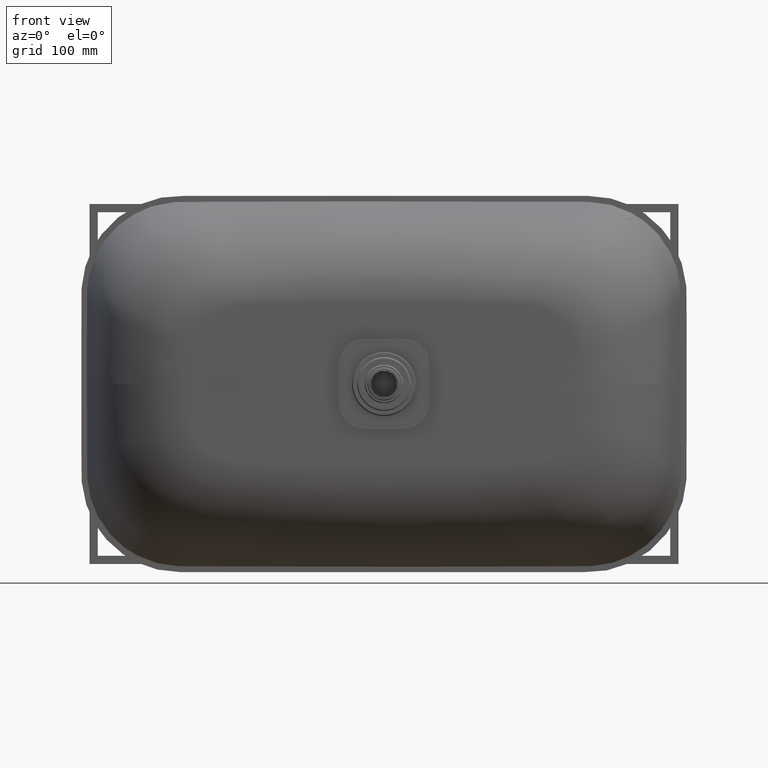
[diagram: clean part render]
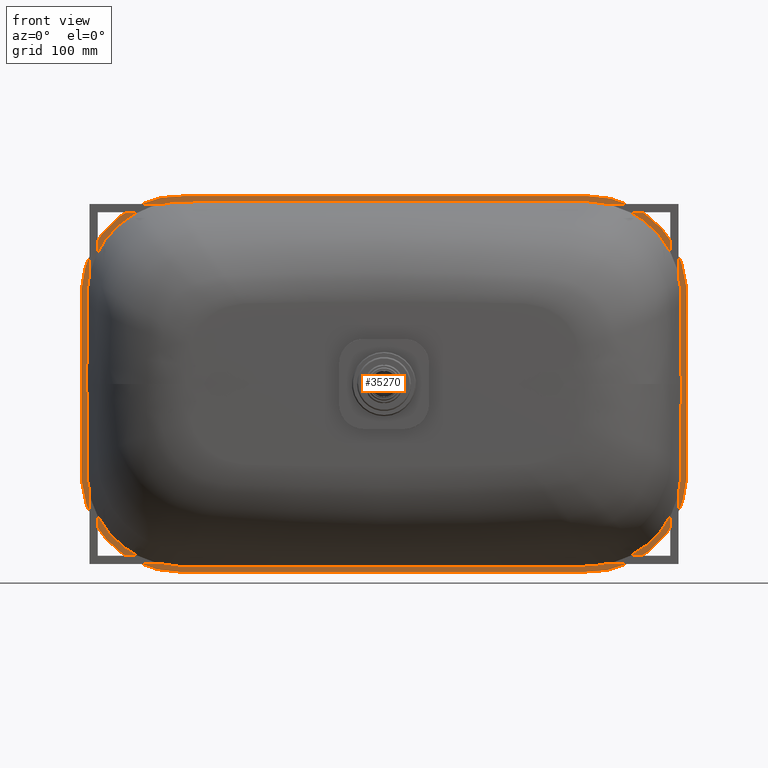
[diagram: same view with one face highlighted and labeled with its STEP entity id]
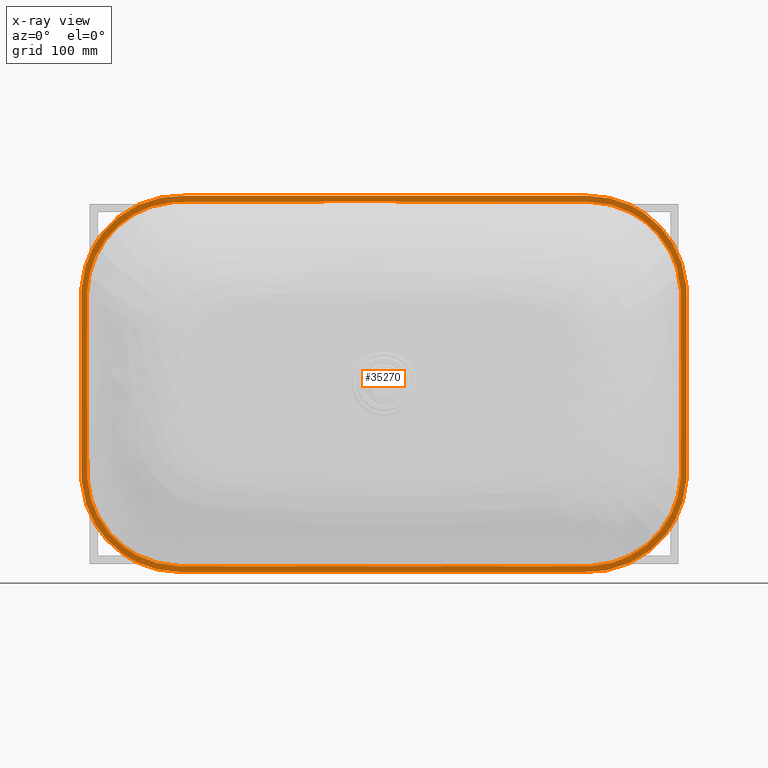
[diagram: x-ray of the same camera — body ghosted, the highlighted face saturated]
A machine part, front view. The second image highlights one B-rep face of the part: STEP entity #35270.
The next image is the same camera in x-ray: the body ghosted, the highlighted face saturated — about 0% of this face is hidden behind the body in this view.
In plain terms, the highlighted planar face has unit normal (0, 1, -0).
Its self-contained STEP definition (entity closure, byte-faithful):
#97 = CARTESIAN_POINT ( 'NONE',  ( -362.9754054177273000, -9.999999999999554100, -108.7276532639513400 ) ) ;
#102 = CARTESIAN_POINT ( 'NONE',  ( 361.2566691731123600, -10.00000000000011700, 129.0539013917965600 ) ) ;
#363 = CARTESIAN_POINT ( 'NONE',  ( -345.0564200818676600, -10.00000000000002000, -170.2196630842311200 ) ) ;
#630 = CARTESIAN_POINT ( 'NONE',  ( -289.5161888709535600, -10.00000000000032900, -215.3555697358578100 ) ) ;
#905 = CARTESIAN_POINT ( 'NONE',  ( -245.7966168999466300, -10.00000000000037500, -222.7691035715895400 ) ) ;
#1178 = CARTESIAN_POINT ( 'NONE',  ( 207.7400371386603700, -10.00000000000030200, -222.8816465399018800 ) ) ;
#1440 = CARTESIAN_POINT ( 'NONE',  ( 273.8700601871456100, -10.00000000000003200, -220.0697920216658500 ) ) ;
#1711 = CARTESIAN_POINT ( 'NONE',  ( 325.1449395641184900, -9.999999999999653600, -193.4649866433541900 ) ) ;
#1756 = ORIENTED_EDGE ( 'NONE', *, *, #23851, .F. ) ;
#1987 = CARTESIAN_POINT ( 'NONE',  ( 352.8462989769433900, -9.999999999999561200, -155.6719567063397800 ) ) ;
#2254 = CARTESIAN_POINT ( 'NONE',  ( 362.9910217820092800, -10.00000000000031800, -105.6723774499465100 ) ) ;
#2324 = CARTESIAN_POINT ( 'NONE',  ( -317.1785100912661100, -9.999999999999838400, 199.9931088752556400 ) ) ;
#2381 = FACE_OUTER_BOUND ( 'NONE', #60231, .T. ) ;
#2568 = CARTESIAN_POINT ( 'NONE',  ( -370.0000000000000000, -10.00000000000000000, -3.122502256758252800E-014 ) ) ;
#2597 = CARTESIAN_POINT ( 'NONE',  ( -363.0786479632249700, -10.00000000000141900, 88.98299129051045500 ) ) ;
#2846 = CARTESIAN_POINT ( 'NONE',  ( -370.0000000564165800, -9.999999999999975100, 78.40955897690190600 ) ) ;
#2876 = CARTESIAN_POINT ( 'NONE',  ( 43.63036583553199700, -9.999999999999897000, 223.2960193543779300 ) ) ;
#3075 = CARTESIAN_POINT ( 'NONE',  ( 369.9999973128920500, -10.00000000000003400, -103.4197589538119100 ) ) ;
#3122 = CARTESIAN_POINT ( 'NONE',  ( -369.9117756355504400, -9.999999999999964500, 115.0811365367341500 ) ) ;
#3354 = CARTESIAN_POINT ( 'NONE',  ( 365.5811764428864300, -10.00000000000004600, -142.7334832046046800 ) ) ;
#3400 = CARTESIAN_POINT ( 'NONE',  ( -289.4804807030344000, -9.999999999999928900, 223.4557360990969500 ) ) ;
#3430 = CARTESIAN_POINT ( 'NONE',  ( -45.76847509761827100, -9.999999999999897000, 223.2934257011737000 ) ) ;
#3636 = CARTESIAN_POINT ( 'NONE',  ( 257.3966411606836000, -10.00000000000007300, -229.7905751632785000 ) ) ;
#3683 = CARTESIAN_POINT ( 'NONE',  ( -245.3670214626337700, -9.999999999999927200, 230.0000054136309600 ) ) ;
#3717 = CARTESIAN_POINT ( 'NONE',  ( -179.8663722601961000, -9.999999999999591400, 222.9634524030508100 ) ) ;
#3929 = CARTESIAN_POINT ( 'NONE',  ( 208.1909280709354800, -10.00000000000007300, -229.9999998948313200 ) ) ;
#3972 = CARTESIAN_POINT ( 'NONE',  ( -1.838806884535415500E-013, -9.999999999999927200, 229.9999999999805900 ) ) ;
#4003 = CARTESIAN_POINT ( 'NONE',  ( 288.8545650664437400, -10.00000000000033400, 215.6062121086660600 ) ) ;
#4211 = CARTESIAN_POINT ( 'NONE',  ( -156.8191275139739400, -10.00000000000007300, -230.0000000053955500 ) ) ;
#4252 = CARTESIAN_POINT ( 'NONE',  ( 245.3670214626335200, -9.999999999999927200, 230.0000054136308200 ) ) ;
#4282 = CARTESIAN_POINT ( 'NONE',  ( 362.1220117706092800, -9.999999999999978700, 123.5380915270102200 ) ) ;
#4489 = CARTESIAN_POINT ( 'NONE',  ( -250.7332074480156300, -10.00000000000007300, -229.9991818206130700 ) ) ;
#4533 = CARTESIAN_POINT ( 'NONE',  ( 289.4804807030340600, -9.999999999999928900, 223.4557360990970400 ) ) ;
#4771 = CARTESIAN_POINT ( 'NONE',  ( -353.0913786025862500, -10.00000000000005300, -171.9959201989187800 ) ) ;
#4815 = CARTESIAN_POINT ( 'NONE',  ( 369.9117756355506100, -9.999999999999964500, 115.0811365367344900 ) ) ;
#4844 = CARTESIAN_POINT ( 'NONE',  ( -319.4062170478295600, -9.999999999999838400, 198.2861344357080500 ) ) ;
#5051 = CARTESIAN_POINT ( 'NONE',  ( -370.0000523813992000, -10.00000000000003600, -108.4842689358032900 ) ) ;
#5097 = CARTESIAN_POINT ( 'NONE',  ( 370.0000000564166400, -9.999999999999975100, 78.40955897690213300 ) ) ;
#5125 = CARTESIAN_POINT ( 'NONE',  ( -342.3663254214499100, -9.999999999999866800, 174.0511910052050300 ) ) ;
#5325 = CARTESIAN_POINT ( 'NONE',  ( -370.0000000000000600, -10.00000000000000200, -5.407556139488238300 ) ) ;
#5582 = DIRECTION ( 'NONE',  ( 0.0000000000000000000, 1.000000000000000000, -3.155370701566231900E-016 ) ) ;
#5698 = CARTESIAN_POINT ( 'NONE',  ( -363.2947380375272200, -10.00000000000026600, -4.082011542286651700E-014 ) ) ;
#6536 = CARTESIAN_POINT ( 'NONE',  ( -362.8230154788090000, -9.999999999999660700, -115.0242055654573900 ) ) ;
#6541 = CARTESIAN_POINT ( 'NONE',  ( 222.4274816866598900, -9.999999999999564800, 222.8382132457971600 ) ) ;
#6813 = CARTESIAN_POINT ( 'NONE',  ( -334.9388872664374000, -10.00000000000016700, -183.7123861236576700 ) ) ;
#7052 = EDGE_CURVE ( 'NONE', #26849, #66233, #27076, .T. ) ;
#7085 = CARTESIAN_POINT ( 'NONE',  ( -278.8606347476583700, -10.00000000000021800, -218.7223934635122800 ) ) ;
#7351 = CARTESIAN_POINT ( 'NONE',  ( -237.5002668517534800, -10.00000000000021700, -222.7936334566793200 ) ) ;
#7623 = CARTESIAN_POINT ( 'NONE',  ( 235.3946119532289500, -10.00000000000017600, -222.7998620711508700 ) ) ;
#7898 = CARTESIAN_POINT ( 'NONE',  ( 284.6500970675725700, -10.00000000000084700, -216.9782276895242900 ) ) ;
#8165 = CARTESIAN_POINT ( 'NONE',  ( 328.3015074780312800, -9.999999999999602100, -190.5205774573504100 ) ) ;
#8430 = CARTESIAN_POINT ( 'NONE',  ( 357.9914560746990400, -9.999999999999932500, -142.4074307492360000 ) ) ;
#8700 = CARTESIAN_POINT ( 'NONE',  ( 363.1197224032430300, -9.999999999999589700, -79.96915049456517000 ) ) ;
#8776 = CARTESIAN_POINT ( 'NONE',  ( 211.2526908818204300, -9.999999999999651800, 222.8712840848867000 ) ) ;
#9020 = CARTESIAN_POINT ( 'NONE',  ( -370.0000000000000000, -9.999999999999998200, 5.407556139488176200 ) ) ;
#9050 = CARTESIAN_POINT ( 'NONE',  ( 336.4184629000758900, -10.00000000000030200, 181.7783395176551600 ) ) ;
#9293 = CARTESIAN_POINT ( 'NONE',  ( -370.0000001376324700, -9.999999999999971600, 93.28033090629507700 ) ) ;
#9323 = CARTESIAN_POINT ( 'NONE',  ( -344.6948635532979200, -9.999999999999863200, 170.5466255652006600 ) ) ;
#9528 = CARTESIAN_POINT ( 'NONE',  ( 369.9999697595848700, -10.00000000000003400, -107.1399925168115600 ) ) ;
#9574 = CARTESIAN_POINT ( 'NONE',  ( -369.2231796589291500, -9.999999999999960900, 123.9083132636468500 ) ) ;
#9605 = CARTESIAN_POINT ( 'NONE',  ( -359.0227985077314700, -9.999999999999859700, 138.8617663828866900 ) ) ;
#9812 = CARTESIAN_POINT ( 'NONE',  ( 358.9368303385662700, -10.00000000000005000, -160.6374205879343400 ) ) ;
#9860 = CARTESIAN_POINT ( 'NONE',  ( -272.5347273984072600, -9.999999999999928900, 227.9402078853941300 ) ) ;
#9890 = CARTESIAN_POINT ( 'NONE',  ( -361.3394157542427900, -9.999999999999440400, 127.8455648082973100 ) ) ;
#10103 = CARTESIAN_POINT ( 'NONE',  ( 252.1423367717200400, -10.00000000000007300, -229.9854392652010800 ) ) ;
#10150 = CARTESIAN_POINT ( 'NONE',  ( -235.2282897767611300, -9.999999999999927200, 230.0000025992095500 ) ) ;
#10180 = CARTESIAN_POINT ( 'NONE',  ( -360.5515044105120000, -9.999999999999857900, 131.9859162139530000 ) ) ;
#10383 = CARTESIAN_POINT ( 'NONE',  ( 178.4493543980402700, -10.00000000000007300, -229.9999999906549700 ) ) ;
#10429 = CARTESIAN_POINT ( 'NONE',  ( 64.89067382028734700, -9.999999999999927200, 229.9999999998671300 ) ) ;
#10460 = CARTESIAN_POINT ( 'NONE',  ( 362.9965070291818300, -10.00000000000073000, 104.6679044025500200 ) ) ;
#10667 = CARTESIAN_POINT ( 'NONE',  ( -194.6720158728513800, -10.00000000000007300, -230.0000000356705800 ) ) ;
#10711 = CARTESIAN_POINT ( 'NONE',  ( 248.4051379303400300, -9.999999999999927200, 230.0000288654553300 ) ) ;
#10743 = CARTESIAN_POINT ( 'NONE',  ( 362.9750443663849600, -9.999999999999383600, 108.8827675663090100 ) ) ;
#10955 = CARTESIAN_POINT ( 'NONE',  ( -254.1704036494605200, -10.00000000000007300, -229.9357047427392900 ) ) ;
#10998 = CARTESIAN_POINT ( 'NONE',  ( 315.4333475073833600, -9.999999999999934300, 211.1954338164224200 ) ) ;
#11029 = CARTESIAN_POINT ( 'NONE',  ( -363.2730728410124400, -9.999999999999095800, 27.80738851365030600 ) ) ;
#11236 = CARTESIAN_POINT ( 'NONE',  ( -362.6162986912609100, -10.00000000000004800, -151.8170165020855800 ) ) ;
#11276 = CARTESIAN_POINT ( 'NONE',  ( 369.9985107857468700, -9.999999999999966200, 110.8386633332187300 ) ) ;
#11505 = CARTESIAN_POINT ( 'NONE',  ( -370.0000102567383900, -10.00000000000003400, -105.4463998884248800 ) ) ;
#11551 = CARTESIAN_POINT ( 'NONE',  ( 370.0000000051377900, -9.999999999999984000, 48.66800487696834700 ) ) ;
#11579 = CARTESIAN_POINT ( 'NONE',  ( -363.1285315623750300, -9.999999999999660700, 77.86048813734041100 ) ) ;
#12993 = CARTESIAN_POINT ( 'NONE',  ( -361.2923267975181100, -10.00000000000092400, -128.8492855374269100 ) ) ;
#12999 = CARTESIAN_POINT ( 'NONE',  ( 334.5778834918176600, -10.00000000000030000, 183.9270809719566800 ) ) ;
#13263 = CARTESIAN_POINT ( 'NONE',  ( -323.0528332967364800, -10.00000000000006000, -195.4650113628155500 ) ) ;
#13530 = CARTESIAN_POINT ( 'NONE',  ( -273.3824105339747900, -10.00000000000037100, -220.0481468593515900 ) ) ;
#13802 = CARTESIAN_POINT ( 'NONE',  ( -212.6112179448956300, -9.999999999999998200, -222.8672706559216900 ) ) ;
#14074 = CARTESIAN_POINT ( 'NONE',  ( 247.1478068609112600, -10.00000000000005900, -222.7651103096347900 ) ) ;
#14183 = B_SPLINE_CURVE_WITH_KNOTS ( 'NONE', 3,
 ( #5698, #51136, #57576, #19158, #63992, #25585, #70411, #32072, #76847, #38526, #97, #44979, #6536, #51413, #12993, #57845, #19427, #64263, #25858, #70671, #32343, #77123, #38794, #363, #45251, #6813, #51682, #13263, #58122, #19694, #64529, #26131, #70952, #32613, #77396, #39070, #630, #45518, #7085, #51957, #13530, #58398, #19963, #64796, #26402, #71223, #32889, #77660, #39344, #905, #45791, #7351, #52232, #13802, #58663, #20240, #65076, #26684, #71498, #33163, #77937, #39616, #1178, #46065, #7623, #52499, #14074, #58934, #20505, #65343, #26962, #71759, #33425, #78213, #39888, #1440, #46331, #7898, #52759, #14341, #59200, #20777, #65607, #27232, #72035, #33688, #78475, #40163, #1711, #46593, #8165, #53029, #14611, #59460, #21050, #65870, #27499, #72309, #33966, #78736, #40433, #1987, #46865, #8430, #53298, #14888, #59725, #21310, #66141, #27768, #72571, #34234, #79007, #40700, #2254, #47137, #8700, #53562, #15159, #60000 ),
 .UNSPECIFIED., .F., .F.,
 ( 4, 2, 2, 2, 2, 2, 2, 2, 2, 2, 2, 2, 2, 2, 2, 2, 2, 2, 2, 2, 2, 2, 2, 2, 2, 1, 2, 2, 2, 2, 2, 2, 2, 2, 2, 2, 2, 2, 2, 2, 2, 2, 2, 2, 2, 2, 2, 2, 2, 2, 2, 2, 2, 2, 2, 2, 2, 2, 1, 2, 4 ),
 ( 1.572839673129814300E-019, 0.06734121974812136400, 0.1010118296221820400, 0.1052206558564396400, 0.1073250689735684400, 0.1094294820906972400, 0.1178471345592124500, 0.1346824394962428100, 0.1431000919647580400, 0.1473089181990156200, 0.1515177444332731800, 0.1683530493703034600, 0.1851883543073337400, 0.2020236592443640200, 0.2188589641813943300, 0.2230677904156519200, 0.2272766166499095300, 0.2356942691184249500, 0.2525295740554556700, 0.2609472265239710700, 0.2651560527582287900, 0.2693648789924864600, 0.2862001839295177900, 0.2883045970466466800, 0.2904090101637756300, 0.2946178363980335700, 0.3030354888665494100, 0.3367060987406130200, 0.4040473184887401500, 0.5387297579849943400, 0.6734121974812484800, 0.7407534172293754900, 0.7744240271034390500, 0.7912593320404708300, 0.7933637451576000000, 0.7954681582747289400, 0.7996769845089868300, 0.8080946369775030600, 0.8249299419145353900, 0.8333475943830515000, 0.8375564206173096200, 0.8396608337344386700, 0.8417652468515679500, 0.8586005517886011700, 0.8754358567256342900, 0.8796446829598925100, 0.8838535091941508400, 0.8922711616626676200, 0.9091064665997009600, 0.9133152928339592900, 0.9175241190682175100, 0.9259417715367342900, 0.9427770764737677400, 0.9511947289422845200, 0.9554035551765429600, 0.9596123814108011900, 0.9680300338793179600, 0.9722388601135763000, 0.9764476863478345200, 1.010118296221901300, 1.077459515970034600 ),
 .UNSPECIFIED. ) ;
#14341 = CARTESIAN_POINT ( 'NONE',  ( 290.0032839300347400, -9.999999999999980500, -215.0326404413172000 ) ) ;
#14549 = CARTESIAN_POINT ( 'NONE',  ( -363.2947380375272200, -10.00000000000026600, -4.082011542286651700E-014 ) ) ;
#14611 = CARTESIAN_POINT ( 'NONE',  ( 332.3273997485679300, -9.999999999999923600, -186.4546788008552500 ) ) ;
#14888 = CARTESIAN_POINT ( 'NONE',  ( 360.7182042566006400, -9.999999999999676700, -131.3142169415097800 ) ) ;
#15159 = CARTESIAN_POINT ( 'NONE',  ( 363.2947380375272200, -9.999999999999129600, -22.84839107160031100 ) ) ;
#15498 = CARTESIAN_POINT ( 'NONE',  ( 330.7760364761813300, -9.999999999999671400, 188.0839808757534700 ) ) ;
#15699 = CARTESIAN_POINT ( 'NONE',  ( 370.0000000003951200, -10.00000000000000500, -16.22266841846388300 ) ) ;
#15746 = CARTESIAN_POINT ( 'NONE',  ( -370.0000015512933900, -9.999999999999969800, 100.7155903604958800 ) ) ;
#15983 = CARTESIAN_POINT ( 'NONE',  ( 369.9998421130367200, -10.00000000000003600, -109.3485733155321100 ) ) ;
#16028 = CARTESIAN_POINT ( 'NONE',  ( -367.4470581483515700, -9.999999999999957400, 134.9774096808805000 ) ) ;
#16263 = CARTESIAN_POINT ( 'NONE',  ( 344.0916251262462400, -10.00000000000005900, -185.3011088497730400 ) ) ;
#16310 = CARTESIAN_POINT ( 'NONE',  ( -261.4155354305588000, -9.999999999999927200, 229.4878407854311600 ) ) ;
#16342 = CARTESIAN_POINT ( 'NONE',  ( 294.0438591447252200, -9.999999999999785100, 213.5216902441740400 ) ) ;
#16547 = CARTESIAN_POINT ( 'NONE',  ( 249.9071089342750200, -10.00000000000007300, -230.0001508669375900 ) ) ;
#16591 = CARTESIAN_POINT ( 'NONE',  ( -219.0059958477467900, -9.999999999999927200, 230.0000001821697100 ) ) ;
#16838 = CARTESIAN_POINT ( 'NONE',  ( 129.7813478840299100, -10.00000000000007300, -229.9999999981669700 ) ) ;
#16886 = CARTESIAN_POINT ( 'NONE',  ( 129.7813478840280400, -9.999999999999927200, 229.9999999981663400 ) ) ;
#16916 = CARTESIAN_POINT ( 'NONE',  ( 268.4731641648384700, -10.00000000000032000, 221.0222664262380500 ) ) ;
#17121 = CARTESIAN_POINT ( 'NONE',  ( -219.0059958477463300, -10.00000000000007300, -230.0000001821698000 ) ) ;
#17166 = CARTESIAN_POINT ( 'NONE',  ( 249.9071089342732000, -9.999999999999927200, 230.0001508669372800 ) ) ;
#17399 = CARTESIAN_POINT ( 'NONE',  ( -261.4155354305581200, -10.00000000000007300, -229.4878407854313900 ) ) ;
#17401 = CARTESIAN_POINT ( 'NONE',  ( -363.2941354495599200, -10.00000000000088800, 4.866298984576735300 ) ) ;
#17444 = CARTESIAN_POINT ( 'NONE',  ( 344.0916251262449400, -9.999999999999941400, 185.3011088497744400 ) ) ;
#17471 = CARTESIAN_POINT ( 'NONE',  ( -362.8509485677166700, -10.00000000000063800, 114.0037391314922100 ) ) ;
#17673 = CARTESIAN_POINT ( 'NONE',  ( -367.4470581483514600, -10.00000000000004400, -134.9774096808805600 ) ) ;
#17717 = CARTESIAN_POINT ( 'NONE',  ( 369.9998421130369500, -9.999999999999966200, 109.3485733155334900 ) ) ;
#17746 = CARTESIAN_POINT ( 'NONE',  ( -242.7246687917556500, -10.00000000000071800, 222.7781832025517900 ) ) ;
#17947 = CARTESIAN_POINT ( 'NONE',  ( -370.0000015512933900, -10.00000000000003200, -100.7155903604959900 ) ) ;
#17993 = CARTESIAN_POINT ( 'NONE',  ( 370.0000000003951800, -9.999999999999994700, 16.22266841846510800 ) ) ;
#18023 = CARTESIAN_POINT ( 'NONE',  ( 356.8879758951388800, -10.00000000000007500, 145.3735181719190700 ) ) ;
#19158 = CARTESIAN_POINT ( 'NONE',  ( -363.1256134293522000, -10.00000000000105500, -78.56459253949667200 ) ) ;
#19427 = CARTESIAN_POINT ( 'NONE',  ( -358.6773285387536700, -9.999999999999420900, -139.7142526681435600 ) ) ;
#19434 = CARTESIAN_POINT ( 'NONE',  ( -249.7087480986767200, -9.999999999999708700, 222.7560370534987700 ) ) ;
#19694 = CARTESIAN_POINT ( 'NONE',  ( -312.9767190215386000, -9.999999999999717600, -202.9873382634710300 ) ) ;
#19963 = CARTESIAN_POINT ( 'NONE',  ( -269.2556151640220600, -10.00000000000009600, -220.8816580700944600 ) ) ;
#20240 = CARTESIAN_POINT ( 'NONE',  ( -157.3021295190392600, -10.00000000000068200, -223.0289447404392400 ) ) ;
#20505 = CARTESIAN_POINT ( 'NONE',  ( 249.2219004241086700, -10.00000000000029800, -222.7589813820564500 ) ) ;
#20777 = CARTESIAN_POINT ( 'NONE',  ( 292.6712773580756000, -10.00000000000032000, -213.9550934646284200 ) ) ;
#21050 = CARTESIAN_POINT ( 'NONE',  ( 339.7457905242104100, -9.999999999999930700, -177.8199977886262400 ) ) ;
#21310 = CARTESIAN_POINT ( 'NONE',  ( 361.6962502370597000, -10.00000000000030000, -125.6354596625938200 ) ) ;
#21381 = CARTESIAN_POINT ( 'NONE',  ( -363.0061740353628500, -10.00000000000141400, 102.8856921590276100 ) ) ;
#21917 = CARTESIAN_POINT ( 'NONE',  ( 155.3786608405834800, -10.00000000000007600, 223.0344066852018700 ) ) ;
#22123 = CARTESIAN_POINT ( 'NONE',  ( 370.0000000051375700, -10.00000000000001600, -48.66800487696705300 ) ) ;
#22168 = CARTESIAN_POINT ( 'NONE',  ( -370.0000102567384500, -9.999999999999968000, 105.4463998884247800 ) ) ;
#22197 = CARTESIAN_POINT ( 'NONE',  ( -362.9911745608852700, -9.999999999999289500, 105.6662109833377900 ) ) ;
#22406 = CARTESIAN_POINT ( 'NONE',  ( 369.9985107857468700, -10.00000000000003600, -110.8386633332168900 ) ) ;
#22452 = CARTESIAN_POINT ( 'NONE',  ( -362.6162986912610800, -9.999999999999952000, 151.8170165020855200 ) ) ;
#22688 = CARTESIAN_POINT ( 'NONE',  ( 315.4333475073850700, -10.00000000000006600, -211.1954338164214800 ) ) ;
#22735 = CARTESIAN_POINT ( 'NONE',  ( -254.1704036494610900, -9.999999999999927200, 229.9357047427391500 ) ) ;
#22766 = CARTESIAN_POINT ( 'NONE',  ( 362.8136994551970200, -9.999999999999978700, 115.1890084391962100 ) ) ;
#22978 = CARTESIAN_POINT ( 'NONE',  ( 248.4051379303418800, -10.00000000000007300, -230.0000288654555000 ) ) ;
#23024 = CARTESIAN_POINT ( 'NONE',  ( -194.6720158728519400, -9.999999999999927200, 230.0000000356703000 ) ) ;
#23057 = CARTESIAN_POINT ( 'NONE',  ( -353.4371117947550300, -9.999999999999911200, 154.5934253794681600 ) ) ;
#23266 = CARTESIAN_POINT ( 'NONE',  ( 64.89067382028906600, -10.00000000000007300, -229.9999999998679200 ) ) ;
#23309 = CARTESIAN_POINT ( 'NONE',  ( 178.4493543980382200, -9.999999999999927200, 229.9999999906543500 ) ) ;
#23339 = CARTESIAN_POINT ( 'NONE',  ( -213.3907980822630200, -9.999999999999593200, 222.8649699142064300 ) ) ;
#23541 = CARTESIAN_POINT ( 'NONE',  ( -235.2282897767607000, -10.00000000000007300, -230.0000025992095500 ) ) ;
#23585 = CARTESIAN_POINT ( 'NONE',  ( 252.1423367717181100, -9.999999999999927200, 229.9854392652008000 ) ) ;
#23616 = CARTESIAN_POINT ( 'NONE',  ( 88.32974942237093800, -10.00000000000007500, 223.2092362523598300 ) ) ;
#23832 = CARTESIAN_POINT ( 'NONE',  ( -272.5347273984065700, -10.00000000000007100, -227.9402078853945000 ) ) ;
#23834 = CARTESIAN_POINT ( 'NONE',  ( -363.2947245556224500, -9.999999999999452900, 0.6951857057102269800 ) ) ;
#23851 = EDGE_CURVE ( 'NONE', #66233, #26849, #14183, .T. ) ;
#23878 = CARTESIAN_POINT ( 'NONE',  ( 358.9368303385653000, -9.999999999999950300, 160.6374205879357900 ) ) ;
#24013 = EDGE_CURVE ( 'NONE', #68062, #30836, #81551, .T. ) ;
#24114 = CARTESIAN_POINT ( 'NONE',  ( -369.2231796589290400, -10.00000000000004100, -123.9083132636469600 ) ) ;
#24157 = CARTESIAN_POINT ( 'NONE',  ( 369.9999697595850400, -9.999999999999968000, 107.1399925168131400 ) ) ;
#24185 = CARTESIAN_POINT ( 'NONE',  ( -90.46784528575686600, -10.00000000000023300, 223.2044962727691200 ) ) ;
#24384 = CARTESIAN_POINT ( 'NONE',  ( -370.0000001376325800, -10.00000000000003000, -93.28033090629502100 ) ) ;
#24429 = CARTESIAN_POINT ( 'NONE',  ( 369.9999999999998900, -10.00000000000000000, 5.785302792382651700E-013 ) ) ;
#24950 = CARTESIAN_POINT ( 'NONE',  ( -370.0000000000000000, -10.00000000000000000, -3.122502256758252800E-014 ) ) ;
#25585 = CARTESIAN_POINT ( 'NONE',  ( -363.0085579391795800, -10.00000000000002300, -102.4143719376155700 ) ) ;
#25858 = CARTESIAN_POINT ( 'NONE',  ( -356.9831385388691800, -9.999999999999609200, -145.0923651046940700 ) ) ;
#26131 = CARTESIAN_POINT ( 'NONE',  ( -309.4393380442347700, -9.999999999999815300, -205.2963334516327900 ) ) ;
#26402 = CARTESIAN_POINT ( 'NONE',  ( -256.8545456470493500, -10.00000000000034500, -222.5876900329998600 ) ) ;
#26684 = CARTESIAN_POINT ( 'NONE',  ( -46.68336513673275300, -9.999999999999825900, -223.2917342923191800 ) ) ;
#26849 = VERTEX_POINT ( 'NONE', #50052 ) ;
#26962 = CARTESIAN_POINT ( 'NONE',  ( 251.9840686603744200, -9.999999999999884500, -222.7150983299428600 ) ) ;
#27076 = B_SPLINE_CURVE_WITH_KNOTS ( 'NONE', 3,
 ( #78809, #34040, #75436, #68729, #56439, #74045, #10460, #47209, #73188, #10743, #30925, #22766, #4282, #102, #61472, #55884, #36284, #18023, #29522, #40507, #60617, #60903, #51419, #81873, #80185, #9050, #12999, #28665, #15498, #48881, #65947, #64270, #66479, #62031, #79620, #75712, #54190, #55039, #16342, #4003, #79348, #79081, #74884, #74602, #75169, #16916, #37394, #49721, #72916, #72378, #42178, #28118, #81593, #81037, #6541, #8776, #62863, #21917, #23616, #2876, #3430, #24185, #34305, #3717, #23339, #28384, #28950, #17746, #29236, #36558, #19434, #55599, #54464, #55323, #30642, #53632, #54743, #74334, #53368, #42731, #73467, #72641, #40775, #59794, #27572, #35422, #2324, #4844, #67037, #66213, #69008, #29801, #35138, #62587, #5125, #9323, #61190, #67887, #66753, #67602, #23057, #44984, #9605, #10180, #34851, #9890, #61749, #41887, #73751, #60074, #17471, #69275, #57854, #67319, #62312, #22197, #21381, #2597, #11579, #35997, #68178, #11029, #30371, #80468, #17401, #30303, #68658, #23834, #75097, #55810, #62243 ),
 .UNSPECIFIED., .F., .F.,
 ( 4, 2, 2, 1, 2, 2, 2, 2, 2, 2, 2, 2, 2, 2, 2, 2, 2, 2, 2, 2, 2, 2, 2, 2, 2, 2, 1, 1, 2, 2, 2, 2, 2, 2, 2, 1, 2, 2, 2, 2, 2, 2, 2, 2, 2, 2, 2, 2, 2, 2, 2, 2, 2, 2, 2, 2, 2, 2, 2, 2, 2, 2, 2, 1, 1, 1, 1, 1, 2, 4 ),
 ( 1.077459515970034600, 1.143712345490236700, 1.176838760250337800, 1.180979562095350500, 1.183049963017856600, 1.185120363940362900, 1.193401967630388000, 1.209965175010438300, 1.218246778700463400, 1.222387580545475800, 1.226528382390488400, 1.243091589770538800, 1.259654797150588900, 1.263795598995601600, 1.267936400840614000, 1.276218004530638800, 1.292781211910688700, 1.296922013755701200, 1.301062815600713800, 1.309344419290738900, 1.325907626670789200, 1.334189230360814500, 1.338330032205826900, 1.342470834050839600, 1.359034041430889000, 1.361104442353395300, 1.363174843275901400, 1.367315645120914100, 1.375597248810938900, 1.408723663571038300, 1.474976493091237200, 1.607482152131635100, 1.739987811172033300, 1.806240640692232000, 1.839367055452331800, 1.847648659142356400, 1.851789460987368900, 1.853859861909875000, 1.855930262832381500, 1.872493470212431400, 1.880775073902456900, 1.884915875747469500, 1.889056677592482000, 1.905619884972532800, 1.922183092352583800, 1.926323894197596400, 1.930464696042609300, 1.938746299732634800, 1.955309507112685400, 1.963591110802711100, 1.967731912647723700, 1.971872714492736400, 1.988435921872787600, 2.004999129252838900, 2.009139931097851500, 2.013280732942864600, 2.021562336632889900, 2.025703138477902500, 2.027773539400409100, 2.029843940322915600, 2.038125544012940900, 2.071251958773042500, 2.104378373533144500, 2.120941580913195100, 2.129223184603220800, 2.133363986448233400, 2.135434387370740000, 2.136469587831992800, 2.136987188062619200, 2.137504788293246100 ),
 .UNSPECIFIED. ) ;
#27124 = EDGE_LOOP ( 'NONE', ( #1756, #73538 ) ) ;
#27232 = CARTESIAN_POINT ( 'NONE',  ( 294.6581349245893200, -9.999999999999767300, -213.1066729424156300 ) ) ;
#27499 = CARTESIAN_POINT ( 'NONE',  ( 346.8344609475260500, -9.999999999999778000, -167.1079698293415000 ) ) ;
#27572 = CARTESIAN_POINT ( 'NONE',  ( -310.3617109579665800, -10.00000000000037800, 204.8628184424646600 ) ) ;
#27702 = ORIENTED_EDGE ( 'NONE', *, *, #24013, .F. ) ;
#27768 = CARTESIAN_POINT ( 'NONE',  ( 362.2601360234473300, -10.00000000000010500, -121.3644455123006200 ) ) ;
#28118 = CARTESIAN_POINT ( 'NONE',  ( 245.4754891570022400, -10.00000000000030900, 222.7700525390903000 ) ) ;
#28384 = CARTESIAN_POINT ( 'NONE',  ( -224.5656059515280000, -9.999999999999904100, 222.8318887402703600 ) ) ;
#28590 = CARTESIAN_POINT ( 'NONE',  ( 370.0000000564162400, -10.00000000000002500, -78.40955897690069800 ) ) ;
#28635 = CARTESIAN_POINT ( 'NONE',  ( -370.0000523813991400, -9.999999999999966200, 108.4842689358032700 ) ) ;
#28665 = CARTESIAN_POINT ( 'NONE',  ( 333.6402837049307100, -9.999999999999671400, 184.9812881415656700 ) ) ;
#28871 = CARTESIAN_POINT ( 'NONE',  ( 369.9117756355505500, -10.00000000000003700, -115.0811365367326000 ) ) ;
#28918 = CARTESIAN_POINT ( 'NONE',  ( -353.0913786025861300, -9.999999999999946700, 171.9959201989187200 ) ) ;
#28950 = CARTESIAN_POINT ( 'NONE',  ( -238.5341159004421200, -9.999999999999902300, 222.7905758809478100 ) ) ;
#29159 = CARTESIAN_POINT ( 'NONE',  ( 289.4804807030358800, -10.00000000000007100, -223.4557360990965000 ) ) ;
#29206 = CARTESIAN_POINT ( 'NONE',  ( -250.7332074480161500, -9.999999999999927200, 229.9991818206130200 ) ) ;
#29236 = CARTESIAN_POINT ( 'NONE',  ( -246.9152225662930400, -9.999999999999712200, 222.7657974363827400 ) ) ;
#29445 = CARTESIAN_POINT ( 'NONE',  ( 245.3670214626352800, -10.00000000000007300, -230.0000054136311000 ) ) ;
#29491 = CARTESIAN_POINT ( 'NONE',  ( -156.8191275139746200, -9.999999999999927200, 230.0000000053952400 ) ) ;
#29522 = CARTESIAN_POINT ( 'NONE',  ( 355.9471692248648100, -10.00000000000007500, 148.0313920214255500 ) ) ;
#29727 = CARTESIAN_POINT ( 'NONE',  ( 1.292368989602721300E-012, -10.00000000000007300, -229.9999999999812700 ) ) ;
#29769 = CARTESIAN_POINT ( 'NONE',  ( 208.1909280709335200, -9.999999999999927200, 229.9999998948308600 ) ) ;
#29801 = CARTESIAN_POINT ( 'NONE',  ( -331.8999690275114200, -10.00000000000036100, 187.0589047403916500 ) ) ;
#30015 = CARTESIAN_POINT ( 'NONE',  ( -245.3670214626334000, -10.00000000000007300, -230.0000054136309600 ) ) ;
#30058 = CARTESIAN_POINT ( 'NONE',  ( 257.3966411606815000, -9.999999999999927200, 229.7905751632782800 ) ) ;
#30301 = CARTESIAN_POINT ( 'NONE',  ( -289.4804807030339500, -10.00000000000007100, -223.4557360990971500 ) ) ;
#30303 = CARTESIAN_POINT ( 'NONE',  ( -363.2945871782254700, -9.999999999999181100, 2.433149775089966700 ) ) ;
#30344 = CARTESIAN_POINT ( 'NONE',  ( 365.5811764428856300, -9.999999999999955600, 142.7334832046064200 ) ) ;
#30371 = CARTESIAN_POINT ( 'NONE',  ( -363.2851781905986900, -9.999999999999927200, 19.46518249791724000 ) ) ;
#30558 = PLANE ( 'NONE',  #54814 ) ;
#30567 = CARTESIAN_POINT ( 'NONE',  ( -369.9117756355506100, -10.00000000000003700, -115.0811365367342300 ) ) ;
#30613 = CARTESIAN_POINT ( 'NONE',  ( 369.9999973128919900, -9.999999999999968000, 103.4197589538134400 ) ) ;
#30642 = CARTESIAN_POINT ( 'NONE',  ( -263.5815386946428600, -9.999999999999984000, 221.9016880969199700 ) ) ;
#30836 = VERTEX_POINT ( 'NONE', #24950 ) ;
#30851 = CARTESIAN_POINT ( 'NONE',  ( -370.0000000564165800, -10.00000000000002500, -78.40955897690180600 ) ) ;
#30925 = CARTESIAN_POINT ( 'NONE',  ( 362.9427931191804600, -9.999999999999381800, 112.3933678342111200 ) ) ;
#32072 = CARTESIAN_POINT ( 'NONE',  ( -362.9896287614380400, -10.00000000000069800, -105.9216780926249300 ) ) ;
#32343 = CARTESIAN_POINT ( 'NONE',  ( -355.5633363323242400, -9.999999999999731800, -149.0588915648517100 ) ) ;
#32613 = CARTESIAN_POINT ( 'NONE',  ( -304.6140414842041700, -10.00000000000054900, -208.1877610018515800 ) ) ;
#32889 = CARTESIAN_POINT ( 'NONE',  ( -249.9446971691216700, -10.00000000000006400, -222.7531988542708600 ) ) ;
#33163 = CARTESIAN_POINT ( 'NONE',  ( 86.05949731770263600, -9.999999999999971600, -223.2139983953401600 ) ) ;
#33425 = CARTESIAN_POINT ( 'NONE',  ( 257.4911469341796500, -10.00000000000068400, -222.4399952724675400 ) ) ;
#33688 = CARTESIAN_POINT ( 'NONE',  ( 305.5795957382804900, -10.00000000000007300, -207.7637442302496100 ) ) ;
#33966 = CARTESIAN_POINT ( 'NONE',  ( 348.9778352547003200, -10.00000000000025000, -163.3630089973185000 ) ) ;
#34040 = CARTESIAN_POINT ( 'NONE',  ( 363.2947380375272200, -9.999999999999110000, 22.47910810257937800 ) ) ;
#34234 = CARTESIAN_POINT ( 'NONE',  ( 362.8667317607262200, -9.999999999999817000, -114.2381906372641800 ) ) ;
#34305 = CARTESIAN_POINT ( 'NONE',  ( -157.5167518582156800, -10.00000000000023100, 223.0283831997296600 ) ) ;
#34819 = CARTESIAN_POINT ( 'NONE',  ( -369.9999999986166600, -9.999999999999989300, 32.44533702614217700 ) ) ;
#34851 = CARTESIAN_POINT ( 'NONE',  ( -360.8317715211019300, -9.999999999999445800, 130.6052437320104200 ) ) ;
#35063 = CARTESIAN_POINT ( 'NONE',  ( 370.0000001376323600, -10.00000000000003000, -93.28033090629377000 ) ) ;
#35108 = CARTESIAN_POINT ( 'NONE',  ( -370.0002737202537400, -9.999999999999966200, 109.9847503573808300 ) ) ;
#35138 = CARTESIAN_POINT ( 'NONE',  ( -335.6164048893848000, -10.00000000000008500, 182.9226624491566000 ) ) ;
#35270 = ADVANCED_FACE ( 'NONE', ( #51593, #2381 ), #30558, .F. ) ;
#35347 = CARTESIAN_POINT ( 'NONE',  ( 369.2231796589293300, -10.00000000000004100, -123.9083132636453800 ) ) ;
#35390 = CARTESIAN_POINT ( 'NONE',  ( -330.7752597798501000, -9.999999999999937800, 199.4472116028093500 ) ) ;
#35422 = CARTESIAN_POINT ( 'NONE',  ( -316.0524102461587900, -10.00000000000038200, 200.8235822132759300 ) ) ;
#35627 = CARTESIAN_POINT ( 'NONE',  ( 272.5347273984087300, -10.00000000000007100, -227.9402078853939000 ) ) ;
#35672 = CARTESIAN_POINT ( 'NONE',  ( -249.2680254088367100, -9.999999999999927200, 229.9999129777617100 ) ) ;
#35917 = CARTESIAN_POINT ( 'NONE',  ( 235.2282897767625200, -10.00000000000007300, -230.0000025992096700 ) ) ;
#35966 = CARTESIAN_POINT ( 'NONE',  ( -97.33601062392065700, -9.999999999999927200, 230.0000000004911600 ) ) ;
#35997 = CARTESIAN_POINT ( 'NONE',  ( -363.2098196786465100, -9.999999999999671400, 55.61470012729620300 ) ) ;
#36213 = CARTESIAN_POINT ( 'NONE',  ( -64.89067382028653700, -10.00000000000007300, -229.9999999998679000 ) ) ;
#36255 = CARTESIAN_POINT ( 'NONE',  ( 227.1174660438716200, -9.999999999999927200, 229.9999993046549200 ) ) ;
#36284 = CARTESIAN_POINT ( 'NONE',  ( 357.3354880270384800, -9.999999999999923600, 144.0307664983245100 ) ) ;
#36484 = CARTESIAN_POINT ( 'NONE',  ( -248.4051379303399800, -10.00000000000007300, -230.0000288654555300 ) ) ;
#36526 = CARTESIAN_POINT ( 'NONE',  ( 266.2030324053480400, -9.999999999999927200, 228.9327285942425200 ) ) ;
#36558 = CARTESIAN_POINT ( 'NONE',  ( -249.0104996154506400, -9.999999999999712200, 222.7596060021195100 ) ) ;
#36766 = CARTESIAN_POINT ( 'NONE',  ( -315.4333475073833600, -10.00000000000006600, -211.1954338164225900 ) ) ;
#36809 = CARTESIAN_POINT ( 'NONE',  ( 368.5694265312981800, -9.999999999999960900, 128.6755109102223300 ) ) ;
#37045 = CARTESIAN_POINT ( 'NONE',  ( -369.9985107857469300, -10.00000000000003600, -110.8386633332185300 ) ) ;
#37090 = CARTESIAN_POINT ( 'NONE',  ( 369.9999994738989800, -9.999999999999969800, 97.33605917397717600 ) ) ;
#37319 = CARTESIAN_POINT ( 'NONE',  ( -370.0000000051377400, -10.00000000000001600, -48.66800487696790600 ) ) ;
#37394 = CARTESIAN_POINT ( 'NONE',  ( 261.5223353956711200, -10.00000000000031800, 222.1580310655787700 ) ) ;
#38526 = CARTESIAN_POINT ( 'NONE',  ( -362.9780403106844300, -9.999999999999920100, -108.0260302515026000 ) ) ;
#38794 = CARTESIAN_POINT ( 'NONE',  ( -350.5943041679115000, -10.00000000000001400, -160.5790004363345000 ) ) ;
#39070 = CARTESIAN_POINT ( 'NONE',  ( -294.6671143840527500, -10.00000000000038900, -213.2492271525393300 ) ) ;
#39344 = CARTESIAN_POINT ( 'NONE',  ( -247.8707044873142100, -10.00000000000037500, -222.7629739935273700 ) ) ;
#39616 = CARTESIAN_POINT ( 'NONE',  ( 174.5544591477262500, -10.00000000000030000, -222.9788303494438300 ) ) ;
#39888 = CARTESIAN_POINT ( 'NONE',  ( 268.4374632136194800, -10.00000000000003700, -221.1533861673470900 ) ) ;
#40063 = EDGE_CURVE ( 'NONE', #30836, #68062, #72149, .T. ) ;
#40163 = CARTESIAN_POINT ( 'NONE',  ( 319.7281282117754100, -9.999999999999651800, -198.2061963413359000 ) ) ;
#40433 = CARTESIAN_POINT ( 'NONE',  ( 351.6351971019167900, -9.999999999999889900, -158.2617517173002000 ) ) ;
#40507 = CARTESIAN_POINT ( 'NONE',  ( 355.4535196940402100, -9.999999999999710500, 149.3476532734405600 ) ) ;
#40700 = CARTESIAN_POINT ( 'NONE',  ( 362.9752795984282400, -10.00000000000031800, -108.5282573745734000 ) ) ;
#40775 = CARTESIAN_POINT ( 'NONE',  ( -295.7509874973418400, -9.999999999999682000, 212.7659832825503700 ) ) ;
#41300 = CARTESIAN_POINT ( 'NONE',  ( -369.9999999808320600, -9.999999999999978700, 64.89067556598732300 ) ) ;
#41528 = CARTESIAN_POINT ( 'NONE',  ( 370.0000015512931700, -10.00000000000003200, -100.7155903604947400 ) ) ;
#41572 = CARTESIAN_POINT ( 'NONE',  ( -369.9837355351535300, -9.999999999999966200, 112.2304330767915300 ) ) ;
#41807 = CARTESIAN_POINT ( 'NONE',  ( 367.4470581483518000, -10.00000000000004400, -134.9774096808791300 ) ) ;
#41855 = CARTESIAN_POINT ( 'NONE',  ( -301.3375124675764600, -9.999999999999930700, 218.7966092659684700 ) ) ;
#41887 = CARTESIAN_POINT ( 'NONE',  ( -362.1736448889508300, -9.999999999999781500, 122.3185477735845300 ) ) ;
#42099 = CARTESIAN_POINT ( 'NONE',  ( 261.4155354305604500, -10.00000000000007300, -229.4878407854311000 ) ) ;
#42146 = CARTESIAN_POINT ( 'NONE',  ( -247.0602996470170200, -9.999999999999927200, 229.9999833621211800 ) ) ;
#42178 = CARTESIAN_POINT ( 'NONE',  ( 247.5707626907118900, -10.00000000000029100, 222.7638603597752900 ) ) ;
#42383 = CARTESIAN_POINT ( 'NONE',  ( 219.0059958477482700, -10.00000000000007300, -230.0000001821698300 ) ) ;
#42426 = CARTESIAN_POINT ( 'NONE',  ( -32.44533689492804000, -9.999999999999927200, 230.0000000000374300 ) ) ;
#42660 = CARTESIAN_POINT ( 'NONE',  ( -129.7813478840275800, -10.00000000000007300, -229.9999999981670300 ) ) ;
#42701 = CARTESIAN_POINT ( 'NONE',  ( 241.3132199434992300, -9.999999999999927200, 229.9999933736821400 ) ) ;
#42731 = CARTESIAN_POINT ( 'NONE',  ( -282.6372131756506900, -9.999999999999722900, 217.5948180714243600 ) ) ;
#42943 = CARTESIAN_POINT ( 'NONE',  ( -249.9071089342731400, -10.00000000000007300, -230.0001508669375600 ) ) ;
#42988 = CARTESIAN_POINT ( 'NONE',  ( 280.3363205952121600, -9.999999999999928900, 226.2329616254817500 ) ) ;
#43225 = CARTESIAN_POINT ( 'NONE',  ( -344.0916251262450500, -10.00000000000005900, -185.3011088497745200 ) ) ;
#43267 = CARTESIAN_POINT ( 'NONE',  ( 369.6864430236645400, -9.999999999999962700, 119.1001921969906300 ) ) ;
#43491 = CARTESIAN_POINT ( 'NONE',  ( -369.9998421130369500, -10.00000000000003600, -109.3485733155333700 ) ) ;
#43536 = CARTESIAN_POINT ( 'NONE',  ( 369.9999999215504000, -9.999999999999971600, 87.87279466569570700 ) ) ;
#43765 = CARTESIAN_POINT ( 'NONE',  ( -370.0000000003953500, -10.00000000000000500, -16.22266841846452900 ) ) ;
#44979 = CARTESIAN_POINT ( 'NONE',  ( -362.9479826010932600, -9.999999999999555900, -112.2337691073176000 ) ) ;
#44984 = CARTESIAN_POINT ( 'NONE',  ( -357.4114828332059200, -9.999999999999907600, 144.2063637148413000 ) ) ;
#45251 = CARTESIAN_POINT ( 'NONE',  ( -341.9306716574607200, -10.00000000000016000, -174.8491930761921700 ) ) ;
#45518 = CARTESIAN_POINT ( 'NONE',  ( -281.5540761132145300, -10.00000000000032300, -217.9513615051032500 ) ) ;
#45791 = CARTESIAN_POINT ( 'NONE',  ( -241.6484417950038100, -9.999999999999127800, -222.7813654086227500 ) ) ;
#46065 = CARTESIAN_POINT ( 'NONE',  ( 218.8018671708579500, -10.00000000000017400, -222.8489339070450500 ) ) ;
#46331 = CARTESIAN_POINT ( 'NONE',  ( 281.9622136402616100, -10.00000000000003600, -217.8284689255563600 ) ) ;
#46593 = CARTESIAN_POINT ( 'NONE',  ( 326.2131076619378400, -9.999999999999605600, -192.4936202500345800 ) ) ;
#46865 = CARTESIAN_POINT ( 'NONE',  ( 356.1756561847574900, -9.999999999999557700, -147.7972155385806400 ) ) ;
#47137 = CARTESIAN_POINT ( 'NONE',  ( 363.0607078719268700, -9.999999999999992900, -92.82089044284853700 ) ) ;
#47209 = CARTESIAN_POINT ( 'NONE',  ( 362.9849507578524600, -9.999999999999808200, 106.7752334417532300 ) ) ;
#47674 = CARTESIAN_POINT ( 'NONE',  ( 369.9999999999998900, -10.00000000000000000, 5.785302792382651700E-013 ) ) ;
#47722 = CARTESIAN_POINT ( 'NONE',  ( -369.9999999215502800, -9.999999999999971600, 87.87279466569543700 ) ) ;
#47962 = CARTESIAN_POINT ( 'NONE',  ( 370.0000102567382800, -10.00000000000003400, -105.4463998884235600 ) ) ;
#48007 = CARTESIAN_POINT ( 'NONE',  ( -369.6864430236645400, -9.999999999999962700, 119.1001921969900600 ) ) ;
#48243 = CARTESIAN_POINT ( 'NONE',  ( 362.6162986912615300, -10.00000000000004800, -151.8170165020840700 ) ) ;
#48289 = CARTESIAN_POINT ( 'NONE',  ( -280.3363205952126100, -9.999999999999928900, 226.2329616254816400 ) ) ;
#48524 = CARTESIAN_POINT ( 'NONE',  ( 254.1704036494629100, -10.00000000000007300, -229.9357047427392300 ) ) ;
#48570 = CARTESIAN_POINT ( 'NONE',  ( -241.3132199434998600, -9.999999999999927200, 229.9999933736821700 ) ) ;
#48804 = CARTESIAN_POINT ( 'NONE',  ( 194.6720158728535400, -10.00000000000007300, -230.0000000356706700 ) ) ;
#48849 = CARTESIAN_POINT ( 'NONE',  ( 32.44533689492779200, -9.999999999999927200, 230.0000000000372900 ) ) ;
#48881 = CARTESIAN_POINT ( 'NONE',  ( 328.7977868945444000, -9.999999999999884500, 190.0723579631416300 ) ) ;
#49098 = CARTESIAN_POINT ( 'NONE',  ( -178.4493543980380000, -10.00000000000007300, -229.9999999906548000 ) ) ;
#49141 = CARTESIAN_POINT ( 'NONE',  ( 247.0602996470166500, -9.999999999999927200, 229.9999833621211300 ) ) ;
#49370 = CARTESIAN_POINT ( 'NONE',  ( -252.1423367717178800, -10.00000000000007300, -229.9854392652011400 ) ) ;
#49413 = CARTESIAN_POINT ( 'NONE',  ( 301.3375124675763500, -9.999999999999930700, 218.7966092659686700 ) ) ;
#49651 = CARTESIAN_POINT ( 'NONE',  ( -358.9368303385655300, -10.00000000000005000, -160.6374205879357400 ) ) ;
#49694 = CARTESIAN_POINT ( 'NONE',  ( 369.9837355351535300, -9.999999999999966200, 112.2304330767920200 ) ) ;
#49721 = CARTESIAN_POINT ( 'NONE',  ( 255.9492678223453500, -10.00000000000008200, 222.6526950042026000 ) ) ;
#49927 = CARTESIAN_POINT ( 'NONE',  ( -369.9999697595850400, -10.00000000000003400, -107.1399925168129500 ) ) ;
#49973 = CARTESIAN_POINT ( 'NONE',  ( 369.9999999808321100, -9.999999999999978700, 64.89067556598752200 ) ) ;
#50052 = CARTESIAN_POINT ( 'NONE',  ( 363.2947380375271100, -10.00000000000011700, 5.951003667812253900E-013 ) ) ;
#50199 = CARTESIAN_POINT ( 'NONE',  ( -370.0000000000000000, -10.00000000000000000, -3.122502256758252800E-014 ) ) ;
#50460 = DIRECTION ( 'NONE',  ( 0.0000000000000000000, 3.155370701566231900E-016, 1.000000000000000000 ) ) ;
#51136 = CARTESIAN_POINT ( 'NONE',  ( -363.2947380375272800, -10.00000000000014400, -22.44716335341739100 ) ) ;
#51413 = CARTESIAN_POINT ( 'NONE',  ( -362.1456243887466800, -9.999999999999664300, -123.3530719140811100 ) ) ;
#51419 = CARTESIAN_POINT ( 'NONE',  ( 344.8610248143491500, -9.999999999999326800, 170.5242328405591900 ) ) ;
#51593 = FACE_BOUND ( 'NONE', #27124, .T. ) ;
#51682 = CARTESIAN_POINT ( 'NONE',  ( -331.1593383654083000, -10.00000000000005700, -187.8343988189553200 ) ) ;
#51957 = CARTESIAN_POINT ( 'NONE',  ( -274.7601714669854100, -10.00000000000021700, -219.7347343314752100 ) ) ;
#52232 = CARTESIAN_POINT ( 'NONE',  ( -223.6730170992885000, -10.00000000000021800, -222.8345291922896100 ) ) ;
#52499 = CARTESIAN_POINT ( 'NONE',  ( 240.9255264830793200, -10.00000000000006400, -222.7835004765172800 ) ) ;
#52759 = CARTESIAN_POINT ( 'NONE',  ( 288.6668707364348200, -10.00000000000084600, -215.5394827981973500 ) ) ;
#53029 = CARTESIAN_POINT ( 'NONE',  ( 329.3240579625080500, -9.999999999999921800, -189.5168674765838000 ) ) ;
#53298 = CARTESIAN_POINT ( 'NONE',  ( 360.1122183958969500, -9.999999999999927200, -134.1137603202846300 ) ) ;
#53368 = CARTESIAN_POINT ( 'NONE',  ( -279.9368858763919000, -9.999999999999724700, 218.3962052330777500 ) ) ;
#53562 = CARTESIAN_POINT ( 'NONE',  ( 363.2480240961823500, -9.999999999999575500, -45.69715492878128100 ) ) ;
#53632 = CARTESIAN_POINT ( 'NONE',  ( -271.7903952017286400, -9.999999999999985800, 220.4138146854038500 ) ) ;
#54115 = CARTESIAN_POINT ( 'NONE',  ( 369.9999999999998900, -10.00000000000000200, -5.407556139487587300 ) ) ;
#54159 = CARTESIAN_POINT ( 'NONE',  ( -369.9999994738987000, -9.999999999999969800, 97.33605917397690600 ) ) ;
#54190 = CARTESIAN_POINT ( 'NONE',  ( 304.0830493566284600, -9.999999999998834700, 208.4839517670834500 ) ) ;
#54389 = CARTESIAN_POINT ( 'NONE',  ( 370.0000523813992600, -10.00000000000003600, -108.4842689358019800 ) ) ;
#54433 = CARTESIAN_POINT ( 'NONE',  ( -368.5694265312982900, -9.999999999999960900, 128.6755109102219000 ) ) ;
#54464 = CARTESIAN_POINT ( 'NONE',  ( -251.7998551466344600, -10.00000000000041200, 222.7144255848986300 ) ) ;
#54663 = CARTESIAN_POINT ( 'NONE',  ( 353.0913786025872100, -10.00000000000005300, -171.9959201989173300 ) ) ;
#54711 = CARTESIAN_POINT ( 'NONE',  ( -266.2030324053482700, -9.999999999999927200, 228.9327285942424900 ) ) ;
#54743 = CARTESIAN_POINT ( 'NONE',  ( -274.5149174511768100, -9.999999999999525700, 219.8179396867890900 ) ) ;
#54814 = AXIS2_PLACEMENT_3D ( 'NONE', #75907, #5582, #50460 ) ;
#54958 = CARTESIAN_POINT ( 'NONE',  ( 250.7332074480180200, -10.00000000000007300, -229.9991818206131000 ) ) ;
#55006 = CARTESIAN_POINT ( 'NONE',  ( -227.1174660438720100, -9.999999999999927200, 229.9999993046550900 ) ) ;
#55039 = CARTESIAN_POINT ( 'NONE',  ( 301.6016217810029600, -9.999999999999785100, 209.8159998205733800 ) ) ;
#55249 = CARTESIAN_POINT ( 'NONE',  ( 156.8191275139761800, -10.00000000000007300, -230.0000000053956900 ) ) ;
#55293 = CARTESIAN_POINT ( 'NONE',  ( 97.33601062392030200, -9.999999999999927200, 230.0000000004907600 ) ) ;
#55323 = CARTESIAN_POINT ( 'NONE',  ( -258.0620897282186700, -10.00000000000041400, 222.4954218016579300 ) ) ;
#55526 = CARTESIAN_POINT ( 'NONE',  ( -208.1909280709333500, -10.00000000000007300, -229.9999998948312300 ) ) ;
#55570 = CARTESIAN_POINT ( 'NONE',  ( 249.2680254088363100, -9.999999999999927200, 229.9999129777617400 ) ) ;
#55599 = CARTESIAN_POINT ( 'NONE',  ( -251.1033135398807900, -9.999999999999703300, 222.7324927603497100 ) ) ;
#55808 = CARTESIAN_POINT ( 'NONE',  ( -257.3966411606812700, -10.00000000000007300, -229.7905751632785000 ) ) ;
#55810 = CARTESIAN_POINT ( 'NONE',  ( -363.2947380375272200, -10.00000000000013900, 0.1725341027693731700 ) ) ;
#55852 = CARTESIAN_POINT ( 'NONE',  ( 330.7752597798499900, -9.999999999999937800, 199.4472116028094600 ) ) ;
#55884 = CARTESIAN_POINT ( 'NONE',  ( 358.6047916291196300, -9.999999999999923600, 139.9710139611057400 ) ) ;
#56096 = CARTESIAN_POINT ( 'NONE',  ( -365.5811764428859800, -10.00000000000004600, -142.7334832046062200 ) ) ;
#56122 = ORIENTED_EDGE ( 'NONE', *, *, #40063, .F. ) ;
#56139 = CARTESIAN_POINT ( 'NONE',  ( 370.0002737202538600, -9.999999999999966200, 109.9847503573812600 ) ) ;
#56366 = CARTESIAN_POINT ( 'NONE',  ( -369.9999973128921600, -10.00000000000003400, -103.4197589538131600 ) ) ;
#56411 = CARTESIAN_POINT ( 'NONE',  ( 369.9999999986166000, -9.999999999999989300, 32.44533702614248900 ) ) ;
#56439 = CARTESIAN_POINT ( 'NONE',  ( 363.0742716891906500, -9.999999999999783300, 89.91621215365763900 ) ) ;
#57576 = CARTESIAN_POINT ( 'NONE',  ( -363.2496567712024100, -10.00000000000104600, -44.89419897362823500 ) ) ;
#57845 = CARTESIAN_POINT ( 'NONE',  ( -359.4069992446982300, -10.00000000000092700, -137.0086635546610700 ) ) ;
#57854 = CARTESIAN_POINT ( 'NONE',  ( -362.9438309294490100, -10.00000000000023400, 111.2265149157207400 ) ) ;
#58122 = CARTESIAN_POINT ( 'NONE',  ( -318.7271569298545200, -9.999999999999715800, -198.9777495417117400 ) ) ;
#58398 = CARTESIAN_POINT ( 'NONE',  ( -270.6316661496342700, -10.00000000000036900, -220.6212037749905900 ) ) ;
#58663 = CARTESIAN_POINT ( 'NONE',  ( -179.4258004197340300, -10.00000000000000200, -222.9647244156132900 ) ) ;
#58934 = CARTESIAN_POINT ( 'NONE',  ( 247.8391713672136500, -10.00000000000029800, -222.7630671735197700 ) ) ;
#59200 = CARTESIAN_POINT ( 'NONE',  ( 292.0040084566526800, -9.999999999999971600, -214.2300939968282600 ) ) ;
#59460 = CARTESIAN_POINT ( 'NONE',  ( 334.2442568835917900, -9.999999999999932500, -184.3454395017610400 ) ) ;
#59725 = CARTESIAN_POINT ( 'NONE',  ( 361.4714895998876600, -9.999999999999678500, -127.0609346244636600 ) ) ;
#59794 = CARTESIAN_POINT ( 'NONE',  ( -305.6175849058797100, -9.999999999999683800, 207.7342074651231500 ) ) ;
#60000 = CARTESIAN_POINT ( 'NONE',  ( 363.2947380375271100, -10.00000000000011700, 5.951003667812253900E-013 ) ) ;
#60074 = CARTESIAN_POINT ( 'NONE',  ( -362.7760390493074300, -10.00000000000016500, 115.3911469693352200 ) ) ;
#60231 = EDGE_LOOP ( 'NONE', ( #56122, #27702 ) ) ;
#60541 = CARTESIAN_POINT ( 'NONE',  ( 369.9999999986165400, -10.00000000000001100, -32.44533702614127400 ) ) ;
#60588 = CARTESIAN_POINT ( 'NONE',  ( -369.9999973128920500, -9.999999999999968000, 103.4197589538131700 ) ) ;
#60617 = CARTESIAN_POINT ( 'NONE',  ( 352.8706626137247900, -9.999999999999708700, 155.8664653689360200 ) ) ;
#60823 = CARTESIAN_POINT ( 'NONE',  ( 370.0002737202537400, -10.00000000000003600, -109.9847503573792300 ) ) ;
#60871 = CARTESIAN_POINT ( 'NONE',  ( -365.5811764428860300, -9.999999999999955600, 142.7334832046060700 ) ) ;
#60903 = CARTESIAN_POINT ( 'NONE',  ( 350.4392153034241300, -9.999999999999328500, 160.8823999047695300 ) ) ;
#61111 = CARTESIAN_POINT ( 'NONE',  ( 330.7752597798513500, -10.00000000000006200, -199.4472116028083500 ) ) ;
#61160 = CARTESIAN_POINT ( 'NONE',  ( -257.3966411606818400, -9.999999999999927200, 229.7905751632785000 ) ) ;
#61190 = CARTESIAN_POINT ( 'NONE',  ( -345.4519083243868600, -10.00000000000014700, 169.3606904442661700 ) ) ;
#61396 = CARTESIAN_POINT ( 'NONE',  ( 249.2680254088382100, -10.00000000000007300, -229.9999129777619400 ) ) ;
#61440 = CARTESIAN_POINT ( 'NONE',  ( -208.1909280709338400, -9.999999999999927200, 229.9999998948310600 ) ) ;
#61472 = CARTESIAN_POINT ( 'NONE',  ( 359.3447484311343500, -10.00000000000011500, 137.2513056012388400 ) ) ;
#61673 = CARTESIAN_POINT ( 'NONE',  ( 97.33601062392219200, -10.00000000000007300, -230.0000000004915800 ) ) ;
#61717 = CARTESIAN_POINT ( 'NONE',  ( 156.8191275139742500, -9.999999999999927200, 230.0000000053949200 ) ) ;
#61749 = CARTESIAN_POINT ( 'NONE',  ( -361.5672286948209300, -9.999999999999774400, 126.4646251040594200 ) ) ;
#61954 = CARTESIAN_POINT ( 'NONE',  ( -227.1174660438715600, -10.00000000000007300, -229.9999993046552900 ) ) ;
#62001 = CARTESIAN_POINT ( 'NONE',  ( 250.7332074480156900, -9.999999999999927200, 229.9991818206130200 ) ) ;
#62031 = CARTESIAN_POINT ( 'NONE',  ( 311.3401785517213500, -9.999999999999815300, 204.0788004910222400 ) ) ;
#62241 = CARTESIAN_POINT ( 'NONE',  ( -266.2030324053478700, -10.00000000000007300, -228.9327285942426300 ) ) ;
#62243 = CARTESIAN_POINT ( 'NONE',  ( -363.2947380375272200, -10.00000000000026600, -4.082011542286651700E-014 ) ) ;
#62284 = CARTESIAN_POINT ( 'NONE',  ( 353.0913786025860800, -9.999999999999946700, 171.9959201989187800 ) ) ;
#62312 = CARTESIAN_POINT ( 'NONE',  ( -362.9718202357672700, -9.999999999999289500, 109.1418339217247400 ) ) ;
#62515 = CARTESIAN_POINT ( 'NONE',  ( -368.5694265312981800, -10.00000000000004100, -128.6755109102220400 ) ) ;
#62559 = CARTESIAN_POINT ( 'NONE',  ( 370.0000523813991400, -9.999999999999966200, 108.4842689358035600 ) ) ;
#62587 = CARTESIAN_POINT ( 'NONE',  ( -340.7360155742434800, -10.00000000000008700, 176.3192004436355100 ) ) ;
#62787 = CARTESIAN_POINT ( 'NONE',  ( -369.9999994738987000, -10.00000000000003200, -97.33605917397697700 ) ) ;
#62834 = CARTESIAN_POINT ( 'NONE',  ( 369.9999999999998900, -9.999999999999998200, 5.407556139488744600 ) ) ;
#62863 = CARTESIAN_POINT ( 'NONE',  ( 177.7282932939716300, -9.999999999999658900, 222.9696565525219700 ) ) ;
#63992 = CARTESIAN_POINT ( 'NONE',  ( -363.0748751999448100, -10.00000000000002300, -89.78803045456628200 ) ) ;
#64263 = CARTESIAN_POINT ( 'NONE',  ( -357.4263683864228900, -9.999999999999422700, -143.7506839062244800 ) ) ;
#64270 = CARTESIAN_POINT ( 'NONE',  ( 318.2996409521351200, -9.999999999999504400, 199.3073014630542700 ) ) ;
#64529 = CARTESIAN_POINT ( 'NONE',  ( -311.8093321825007800, -9.999999999999813500, -203.7700425518427200 ) ) ;
#64796 = CARTESIAN_POINT ( 'NONE',  ( -262.3720277394328400, -10.00000000000009400, -222.0559199754089500 ) ) ;
#65076 = CARTESIAN_POINT ( 'NONE',  ( -90.93092722840434300, -10.00000000000068200, -223.2032843114963900 ) ) ;
#65343 = CARTESIAN_POINT ( 'NONE',  ( 249.9129573297852600, -9.999999999999882800, -222.7535992552956300 ) ) ;
#65607 = CARTESIAN_POINT ( 'NONE',  ( 293.9983085848704700, -10.00000000000032300, -213.3933812898221400 ) ) ;
#65870 = CARTESIAN_POINT ( 'NONE',  ( 343.0835940725160600, -9.999999999999785100, -173.2077903098390500 ) ) ;
#65947 = CARTESIAN_POINT ( 'NONE',  ( 322.6597288265182300, -9.999999999999881000, 195.8006654450433900 ) ) ;
#66141 = CARTESIAN_POINT ( 'NONE',  ( 362.0903265976506900, -10.00000000000030000, -122.7885471529967400 ) ) ;
#66213 = CARTESIAN_POINT ( 'NONE',  ( -323.7662862675092000, -10.00000000000035900, 194.7167383665248200 ) ) ;
#66233 = VERTEX_POINT ( 'NONE', #14549 ) ;
#66479 = CARTESIAN_POINT ( 'NONE',  ( 312.5141708931533900, -9.999999999999502600, 203.2999539272895800 ) ) ;
#66753 = CARTESIAN_POINT ( 'NONE',  ( -347.6362881666394700, -10.00000000000090800, 165.7444653242004300 ) ) ;
#66959 = CARTESIAN_POINT ( 'NONE',  ( 369.9999999808321100, -10.00000000000002100, -64.89067556598622800 ) ) ;
#67007 = CARTESIAN_POINT ( 'NONE',  ( -369.9999697595849900, -9.999999999999968000, 107.1399925168127500 ) ) ;
#67037 = CARTESIAN_POINT ( 'NONE',  ( -320.5101123864234900, -10.00000000000035700, 197.4077147348618300 ) ) ;
#67245 = CARTESIAN_POINT ( 'NONE',  ( 369.9837355351534700, -10.00000000000003600, -112.2304330767900200 ) ) ;
#67289 = CARTESIAN_POINT ( 'NONE',  ( -358.9368303385656400, -9.999999999999950300, 160.6374205879356200 ) ) ;
#67319 = CARTESIAN_POINT ( 'NONE',  ( -362.9681130559590100, -10.00000000000024000, 109.8369654336278800 ) ) ;
#67524 = CARTESIAN_POINT ( 'NONE',  ( 301.3375124675778800, -10.00000000000006900, -218.7966092659679300 ) ) ;
#67571 = CARTESIAN_POINT ( 'NONE',  ( -252.1423367717185900, -9.999999999999927200, 229.9854392652010200 ) ) ;
#67602 = CARTESIAN_POINT ( 'NONE',  ( -351.0736442009011900, -10.00000000000090600, 159.6357240320967300 ) ) ;
#67807 = CARTESIAN_POINT ( 'NONE',  ( 247.0602996470185200, -10.00000000000007300, -229.9999833621213300 ) ) ;
#67854 = CARTESIAN_POINT ( 'NONE',  ( -178.4493543980385700, -9.999999999999927200, 229.9999999906548000 ) ) ;
#67887 = CARTESIAN_POINT ( 'NONE',  ( -346.9245441690775900, -10.00000000000015300, 166.9564580633086500 ) ) ;
#68062 = VERTEX_POINT ( 'NONE', #75029 ) ;
#68106 = CARTESIAN_POINT ( 'NONE',  ( 32.44533689492934800, -10.00000000000007300, -230.0000000000380300 ) ) ;
#68148 = CARTESIAN_POINT ( 'NONE',  ( 194.6720158728516600, -9.999999999999927200, 230.0000000356700100 ) ) ;
#68178 = CARTESIAN_POINT ( 'NONE',  ( -363.2412310750935400, -9.999999999999094100, 44.49178619941839900 ) ) ;
#68381 = CARTESIAN_POINT ( 'NONE',  ( -241.3132199434992300, -10.00000000000007300, -229.9999933736824900 ) ) ;
#68423 = CARTESIAN_POINT ( 'NONE',  ( 254.1704036494607500, -9.999999999999927200, 229.9357047427392300 ) ) ;
#68656 = CARTESIAN_POINT ( 'NONE',  ( -280.3363205952121600, -10.00000000000007100, -226.2329616254818900 ) ) ;
#68658 = CARTESIAN_POINT ( 'NONE',  ( -363.2947002961578800, -9.999999999999818800, 1.216574958395183500 ) ) ;
#68701 = CARTESIAN_POINT ( 'NONE',  ( 362.6162986912609100, -9.999999999999952000, 151.8170165020856600 ) ) ;
#68729 = CARTESIAN_POINT ( 'NONE',  ( 363.1251468450156500, -9.999999999999493700, 78.67665541724251500 ) ) ;
#68932 = CARTESIAN_POINT ( 'NONE',  ( -369.6864430236646500, -10.00000000000003900, -119.1001921969901200 ) ) ;
#68979 = CARTESIAN_POINT ( 'NONE',  ( 370.0000102567383900, -9.999999999999968000, 105.4463998884250800 ) ) ;
#69008 = CARTESIAN_POINT ( 'NONE',  ( -325.8580705282784000, -10.00000000000035900, 192.8534681159026700 ) ) ;
#69202 = CARTESIAN_POINT ( 'NONE',  ( -369.9999999215503400, -10.00000000000002800, -87.87279466569546600 ) ) ;
#69275 = CARTESIAN_POINT ( 'NONE',  ( -362.9253560766624100, -10.00000000000063800, 111.9210217242624200 ) ) ;
#70411 = CARTESIAN_POINT ( 'NONE',  ( -363.0010613939895200, -10.00000000000069500, -103.8173040705385100 ) ) ;
#70671 = CARTESIAN_POINT ( 'NONE',  ( -356.0520637226862300, -9.999999999999607400, -147.7449832686630200 ) ) ;
#70952 = CARTESIAN_POINT ( 'NONE',  ( -308.2390184745041800, -10.00000000000054900, -206.0383209083157100 ) ) ;
#71223 = CARTESIAN_POINT ( 'NONE',  ( -250.6358271453886700, -10.00000000000034600, -222.7422227217266800 ) ) ;
#71498 = CARTESIAN_POINT ( 'NONE',  ( 41.81189318029959900, -9.999999999999825900, -223.2975808119589400 ) ) ;
#71759 = CARTESIAN_POINT ( 'NONE',  ( 253.3625352055285300, -10.00000000000068200, -222.6647431696176500 ) ) ;
#72035 = CARTESIAN_POINT ( 'NONE',  ( 300.5636347688475200, -9.999999999999760200, -210.4740498254195700 ) ) ;
#72149 = B_SPLINE_CURVE_WITH_KNOTS ( 'NONE', 3,
 ( #2568, #9020, #73159, #34819, #79592, #41300, #2846, #47722, #9293, #54159, #15746, #60588, #22168, #67007, #28635, #73435, #35108, #79873, #41572, #3122, #48007, #9574, #54433, #16028, #60871, #22452, #67289, #28918, #73719, #35390, #80153, #41855, #3400, #48289, #9860, #54711, #16310, #61160, #22735, #67571, #29206, #74014, #35672, #80435, #42146, #3683, #48570, #10150, #55006, #16591, #61440, #23024, #67854, #29491, #74302, #35966, #80722, #42426, #3972, #48849, #10429, #55293, #16886, #61717, #23309, #68148, #29769, #74574, #36255, #81005, #42701, #4252, #49141, #10711, #55570, #17166, #62001, #23585, #68423, #30058, #74854, #36526, #81283, #42988, #4533, #49413, #10998, #55852, #17444, #62284, #23878, #68701, #30344, #75139, #36809, #81566, #43267, #4815, #49694, #11276, #56139, #17717, #62559, #24157, #68979, #30613, #75409, #37090, #81843, #43536, #5097, #49973, #11551, #56411, #17993, #62834, #24429 ),
 .UNSPECIFIED., .F., .F.,
 ( 4, 1, 1, 1, 1, 1, 1, 1, 1, 1, 1, 1, 1, 1, 1, 1, 1, 1, 1, 1, 1, 1, 1, 1, 1, 1, 1, 1, 1, 1, 1, 1, 1, 1, 1, 1, 1, 1, 1, 1, 1, 1, 1, 1, 1, 1, 1, 1, 1, 1, 1, 1, 1, 1, 1, 1, 1, 1, 1, 1, 1, 1, 1, 1, 1, 1, 1, 1, 1, 1, 1, 1, 1, 1, 1, 1, 1, 1, 1, 1, 1, 1, 1, 1, 1, 1, 1, 1, 1, 1, 1, 1, 1, 1, 1, 1, 1, 1, 1, 1, 1, 1, 1, 1, 1, 1, 1, 1, 1, 1, 1, 1, 1, 1, 4 ),
 ( 0.0000000000000000000, 0.007812500000000000000, 0.01562500000000000000, 0.02343750000000000000, 0.03125000000000000000, 0.03906250000000000000, 0.04296875000000000000, 0.04492187500000000000, 0.04687500000000000000, 0.04882812500000000000, 0.04980468750000000000, 0.05078125000000000000, 0.05175781250000000000, 0.05224609375000000000, 0.05273437500000000000, 0.05297851562500000000, 0.05322265625000000000, 0.05371093750000000000, 0.05468750000000000000, 0.05664062500000000000, 0.05859375000000000000, 0.06054687500000000000, 0.06250000000000000000, 0.06640625000000000000, 0.07031250000000000000, 0.07421875000000000000, 0.07812500000000000000, 0.08593750000000000000, 0.09375000000000000000, 0.1015625000000000000, 0.1093750000000000000, 0.1132812500000000000, 0.1171875000000000000, 0.1210937500000000000, 0.1230468750000000000, 0.1250000000000000000, 0.1269531250000000000, 0.1279296875000000000, 0.1289062500000000000, 0.1293945312500000000, 0.1296386718750000000, 0.1298828125000000000, 0.1303710937500000000, 0.1308593750000000000, 0.1318359375000000000, 0.1328125000000000000, 0.1367187500000000000, 0.1406250000000000000, 0.1445312500000000000, 0.1484375000000000000, 0.1562500000000000000, 0.1640625000000000000, 0.1718750000000000000, 0.1875000000000000000, 0.2031250000000000000, 0.2187500000000000000, 0.2343750000000000000, 0.2500000000000000000, 0.2656250000000000000, 0.2812500000000000000, 0.2968750000000000000, 0.3125000000000000000, 0.3281250000000000000, 0.3359375000000000000, 0.3437500000000000000, 0.3515625000000000000, 0.3554687500000000000, 0.3593750000000000000, 0.3632812500000000000, 0.3671875000000000000, 0.3681640625000000000, 0.3691406250000000000, 0.3696289062500000000, 0.3701171875000000000, 0.3703613281250000000, 0.3706054687500000000, 0.3710937500000000000, 0.3720703125000000000, 0.3730468750000000000, 0.3750000000000000000, 0.3769531250000000000, 0.3789062500000000000, 0.3828125000000000000, 0.3867187500000000000, 0.3906250000000000000, 0.3984375000000000000, 0.4062500000000000000, 0.4140625000000000000, 0.4218750000000000000, 0.4257812500000000000, 0.4296875000000000000, 0.4335937500000000000, 0.4375000000000000000, 0.4394531250000000000, 0.4414062500000000000, 0.4433593750000000000, 0.4453125000000000000, 0.4462890625000000000, 0.4467773437500000000, 0.4470214843750000000, 0.4472656250000000000, 0.4477539062500000000, 0.4482421875000000000, 0.4492187500000000000, 0.4501953125000000000, 0.4511718750000000000, 0.4531250000000000000, 0.4550781250000000000, 0.4570312500000000000, 0.4609375000000000000, 0.4687500000000000000, 0.4765625000000000000, 0.4843750000000000000, 0.4921875000000000000, 0.5000000000000000000 ),
 .UNSPECIFIED. ) ;
#72309 = CARTESIAN_POINT ( 'NONE',  ( 347.5633809973827500, -10.00000000000024900, -165.8711316316109500 ) ) ;
#72378 = CARTESIAN_POINT ( 'NONE',  ( 248.9676117276806900, -10.00000000000028800, 222.7597327239702500 ) ) ;
#72571 = CARTESIAN_POINT ( 'NONE',  ( 362.6887109418675000, -10.00000000000010100, -117.0902241743285300 ) ) ;
#72641 = CARTESIAN_POINT ( 'NONE',  ( -290.6287473706268000, -9.999999999999987600, 214.9268046138532500 ) ) ;
#72916 = CARTESIAN_POINT ( 'NONE',  ( 249.6660011646572200, -10.00000000000007600, 222.7564982144479600 ) ) ;
#73159 = CARTESIAN_POINT ( 'NONE',  ( -370.0000000003951200, -9.999999999999994700, 16.22266841846471400 ) ) ;
#73188 = CARTESIAN_POINT ( 'NONE',  ( 362.9771845263653600, -9.999999999999808200, 108.1801117548001800 ) ) ;
#73389 = CARTESIAN_POINT ( 'NONE',  ( 369.9999999215503400, -10.00000000000002800, -87.87279466569438600 ) ) ;
#73435 = CARTESIAN_POINT ( 'NONE',  ( -369.9998421130367800, -9.999999999999966200, 109.3485733155331600 ) ) ;
#73467 = CARTESIAN_POINT ( 'NONE',  ( -283.9816313097342100, -9.999999999999987600, 217.1687026751381500 ) ) ;
#73538 = ORIENTED_EDGE ( 'NONE', *, *, #7052, .F. ) ;
#73673 = CARTESIAN_POINT ( 'NONE',  ( 369.6864430236647100, -10.00000000000003900, -119.1001921969885900 ) ) ;
#73719 = CARTESIAN_POINT ( 'NONE',  ( -344.0916251262451100, -9.999999999999941400, 185.3011088497743200 ) ) ;
#73751 = CARTESIAN_POINT ( 'NONE',  ( -362.4753270552315000, -10.00000000000016300, 119.5501562249534300 ) ) ;
#73966 = CARTESIAN_POINT ( 'NONE',  ( 280.3363205952139800, -10.00000000000007100, -226.2329616254814700 ) ) ;
#74014 = CARTESIAN_POINT ( 'NONE',  ( -249.9071089342735700, -9.999999999999927200, 230.0001508669374700 ) ) ;
#74045 = CARTESIAN_POINT ( 'NONE',  ( 363.0077809964398100, -9.999999999999779700, 102.5605402720462800 ) ) ;
#74257 = CARTESIAN_POINT ( 'NONE',  ( 241.3132199435013400, -10.00000000000007300, -229.9999933736824300 ) ) ;
#74302 = CARTESIAN_POINT ( 'NONE',  ( -129.7813478840283500, -9.999999999999927200, 229.9999999981666600 ) ) ;
#74334 = CARTESIAN_POINT ( 'NONE',  ( -278.5836513523253800, -9.999999999999525700, 218.7708147739295700 ) ) ;
#74533 = CARTESIAN_POINT ( 'NONE',  ( -32.44533689492683200, -10.00000000000007300, -230.0000000000380300 ) ) ;
#74574 = CARTESIAN_POINT ( 'NONE',  ( 219.0059958477463900, -9.999999999999927200, 230.0000001821694300 ) ) ;
#74602 = CARTESIAN_POINT ( 'NONE',  ( 272.6397388889404900, -10.00000000000004300, 220.2099101434270100 ) ) ;
#74808 = CARTESIAN_POINT ( 'NONE',  ( -247.0602996470166200, -10.00000000000007300, -229.9999833621212400 ) ) ;
#74854 = CARTESIAN_POINT ( 'NONE',  ( 261.4155354305584100, -9.999999999999927200, 229.4878407854312200 ) ) ;
#74884 = CARTESIAN_POINT ( 'NONE',  ( 274.0237018802545800, -9.999999999999920100, 219.9045385182615200 ) ) ;
#75029 = CARTESIAN_POINT ( 'NONE',  ( 369.9999999999998900, -10.00000000000000000, 5.785302792382651700E-013 ) ) ;
#75095 = CARTESIAN_POINT ( 'NONE',  ( -301.3375124675763500, -10.00000000000006900, -218.7966092659687500 ) ) ;
#75097 = CARTESIAN_POINT ( 'NONE',  ( -363.2947353398188300, -9.999999999999452900, 0.3475928604560106800 ) ) ;
#75139 = CARTESIAN_POINT ( 'NONE',  ( 367.4470581483514600, -9.999999999999957400, 134.9774096808809800 ) ) ;
#75169 = CARTESIAN_POINT ( 'NONE',  ( 269.8625508183067200, -10.00000000000004600, 220.7691144372763000 ) ) ;
#75364 = CARTESIAN_POINT ( 'NONE',  ( -369.9837355351533600, -10.00000000000003600, -112.2304330767916700 ) ) ;
#75409 = CARTESIAN_POINT ( 'NONE',  ( 370.0000015512933400, -9.999999999999969800, 100.7155903604962200 ) ) ;
#75436 = CARTESIAN_POINT ( 'NONE',  ( 363.2495279404556600, -9.999999999999506200, 44.95815677271038900 ) ) ;
#75640 = CARTESIAN_POINT ( 'NONE',  ( -369.9999999808322300, -10.00000000000002100, -64.89067556598723700 ) ) ;
#75712 = CARTESIAN_POINT ( 'NONE',  ( 307.7469461061089100, -9.999999999998836500, 206.3368016177348600 ) ) ;
#75907 = CARTESIAN_POINT ( 'NONE',  ( 369.9999999999998900, -10.00000000000000000, 5.786498838568720100E-013 ) ) ;
#76847 = CARTESIAN_POINT ( 'NONE',  ( -362.9857865850523200, -9.999999999999921800, -106.6231317083712300 ) ) ;
#77123 = CARTESIAN_POINT ( 'NONE',  ( -353.0052871323229600, -9.999999999999738900, -155.5672513784017800 ) ) ;
#77396 = CARTESIAN_POINT ( 'NONE',  ( -302.1569813452786700, -10.00000000000038900, -209.5240856199731100 ) ) ;
#77660 = CARTESIAN_POINT ( 'NONE',  ( -248.5621146828353900, -10.00000000000006400, -222.7627617870397800 ) ) ;
#77937 = CARTESIAN_POINT ( 'NONE',  ( 152.4307286036133700, -9.999999999999969800, -223.0426207242600200 ) ) ;
#78213 = CARTESIAN_POINT ( 'NONE',  ( 260.2345126528146000, -10.00000000000004100, -222.1920117564363000 ) ) ;
#78475 = CARTESIAN_POINT ( 'NONE',  ( 315.1611832605281600, -10.00000000000006800, -201.6287718067151200 ) ) ;
#78736 = CARTESIAN_POINT ( 'NONE',  ( 349.6628071288391800, -9.999999999999888100, -162.0924618329165700 ) ) ;
#78809 = CARTESIAN_POINT ( 'NONE',  ( 363.2947380375271100, -10.00000000000011700, 5.951003667812253900E-013 ) ) ;
#79007 = CARTESIAN_POINT ( 'NONE',  ( 362.9734966974032800, -9.999999999999813500, -109.9563416414108400 ) ) ;
#79081 = CARTESIAN_POINT ( 'NONE',  ( 278.1405126080676400, -9.999999999999921800, 218.9166293145725600 ) ) ;
#79348 = CARTESIAN_POINT ( 'NONE',  ( 280.8470515187695500, -10.00000000000033200, 218.1607575096341500 ) ) ;
#79592 = CARTESIAN_POINT ( 'NONE',  ( -370.0000000051376800, -9.999999999999984000, 48.66800487696811200 ) ) ;
#79620 = CARTESIAN_POINT ( 'NONE',  ( 308.9578499884670500, -9.999999999999811700, 205.5964883326589100 ) ) ;
#79828 = CARTESIAN_POINT ( 'NONE',  ( 369.9999994738987000, -10.00000000000003200, -97.33605917397574100 ) ) ;
#79873 = CARTESIAN_POINT ( 'NONE',  ( -369.9985107857468700, -9.999999999999966200, 110.8386633332183600 ) ) ;
#80110 = CARTESIAN_POINT ( 'NONE',  ( 368.5694265312986900, -10.00000000000004100, -128.6755109102204000 ) ) ;
#80153 = CARTESIAN_POINT ( 'NONE',  ( -315.4333475073835300, -9.999999999999934300, 211.1954338164223400 ) ) ;
#80185 = CARTESIAN_POINT ( 'NONE',  ( 337.3223414815225300, -9.999999999999388900, 180.6824875172921500 ) ) ;
#80389 = CARTESIAN_POINT ( 'NONE',  ( 266.2030324053499200, -10.00000000000007300, -228.9327285942423800 ) ) ;
#80435 = CARTESIAN_POINT ( 'NONE',  ( -248.4051379303404300, -9.999999999999927200, 230.0000288654554500 ) ) ;
#80468 = CARTESIAN_POINT ( 'NONE',  ( -363.2923344785940000, -9.999999999999964500, 9.732595716302917300 ) ) ;
#80675 = CARTESIAN_POINT ( 'NONE',  ( 227.1174660438736100, -10.00000000000007300, -229.9999993046553200 ) ) ;
#80722 = CARTESIAN_POINT ( 'NONE',  ( -64.89067382028767400, -9.999999999999927200, 229.9999999998673000 ) ) ;
#80962 = CARTESIAN_POINT ( 'NONE',  ( -97.33601062391973400, -10.00000000000007300, -230.0000000004914400 ) ) ;
#81005 = CARTESIAN_POINT ( 'NONE',  ( 235.2282897767607300, -9.999999999999927200, 230.0000025992093200 ) ) ;
#81037 = CARTESIAN_POINT ( 'NONE',  ( 236.3959709360556500, -9.999999999999566600, 222.7968995028779200 ) ) ;
#81239 = CARTESIAN_POINT ( 'NONE',  ( -249.2680254088362800, -10.00000000000007300, -229.9999129777618200 ) ) ;
#81283 = CARTESIAN_POINT ( 'NONE',  ( 272.5347273984068000, -9.999999999999928900, 227.9402078853942200 ) ) ;
#81522 = CARTESIAN_POINT ( 'NONE',  ( -330.7752597798499300, -10.00000000000006200, -199.4472116028095700 ) ) ;
#81551 = B_SPLINE_CURVE_WITH_KNOTS ( 'NONE', 3,
 ( #47674, #54115, #15699, #60541, #22123, #66959, #28590, #73389, #35063, #79828, #41528, #3075, #47962, #9528, #54389, #15983, #60823, #22406, #67245, #28871, #73673, #35347, #80110, #41807, #3354, #48243, #9812, #54663, #16263, #61111, #22688, #67524, #29159, #73966, #35627, #80389, #42099, #3636, #48524, #10103, #54958, #16547, #61396, #22978, #67807, #29445, #74257, #35917, #80675, #42383, #3929, #48804, #10383, #55249, #16838, #61673, #23266, #68106, #29727, #74533, #36213, #80962, #42660, #4211, #49098, #10667, #55526, #17121, #61954, #23541, #68381, #30015, #74808, #36484, #81239, #42943, #4489, #49370, #10955, #55808, #17399, #62241, #23832, #68656, #30301, #75095, #36766, #81522, #43225, #4771, #49651, #11236, #56096, #17673, #62515, #24114, #68932, #30567, #75364, #37045, #81796, #43491, #5051, #49927, #11505, #56366, #17947, #62787, #24384, #69202, #30851, #75640, #37319, #82078, #43765, #5325, #50199 ),
 .UNSPECIFIED., .F., .F.,
 ( 4, 1, 1, 1, 1, 1, 1, 1, 1, 1, 1, 1, 1, 1, 1, 1, 1, 1, 1, 1, 1, 1, 1, 1, 1, 1, 1, 1, 1, 1, 1, 1, 1, 1, 1, 1, 1, 1, 1, 1, 1, 1, 1, 1, 1, 1, 1, 1, 1, 1, 1, 1, 1, 1, 1, 1, 1, 1, 1, 1, 1, 1, 1, 1, 1, 1, 1, 1, 1, 1, 1, 1, 1, 1, 1, 1, 1, 1, 1, 1, 1, 1, 1, 1, 1, 1, 1, 1, 1, 1, 1, 1, 1, 1, 1, 1, 1, 1, 1, 1, 1, 1, 1, 1, 1, 1, 1, 1, 1, 1, 1, 1, 1, 1, 4 ),
 ( 0.5000000000000000000, 0.5078125000000000000, 0.5156250000000000000, 0.5234375000000000000, 0.5312500000000000000, 0.5390625000000000000, 0.5429687500000000000, 0.5449218750000000000, 0.5468750000000000000, 0.5488281250000000000, 0.5498046875000000000, 0.5507812500000000000, 0.5517578125000000000, 0.5522460937500000000, 0.5527343750000000000, 0.5529785156250000000, 0.5532226562500000000, 0.5537109375000000000, 0.5546875000000000000, 0.5566406250000000000, 0.5585937500000000000, 0.5605468750000000000, 0.5625000000000000000, 0.5664062500000000000, 0.5703125000000000000, 0.5742187500000000000, 0.5781250000000000000, 0.5859375000000000000, 0.5937500000000000000, 0.6015625000000000000, 0.6093750000000000000, 0.6132812500000000000, 0.6171875000000000000, 0.6210937500000000000, 0.6230468750000000000, 0.6250000000000000000, 0.6269531250000000000, 0.6279296875000000000, 0.6289062500000000000, 0.6293945312500000000, 0.6296386718750000000, 0.6298828125000000000, 0.6303710937500000000, 0.6308593750000000000, 0.6318359375000000000, 0.6328125000000000000, 0.6367187500000000000, 0.6406250000000000000, 0.6445312500000000000, 0.6484375000000000000, 0.6562500000000000000, 0.6640625000000000000, 0.6718750000000000000, 0.6875000000000000000, 0.7031250000000000000, 0.7187500000000000000, 0.7343750000000000000, 0.7500000000000000000, 0.7656250000000000000, 0.7812500000000000000, 0.7968750000000000000, 0.8125000000000000000, 0.8281250000000000000, 0.8359375000000000000, 0.8437500000000000000, 0.8515625000000000000, 0.8554687500000000000, 0.8593750000000000000, 0.8632812500000000000, 0.8671875000000000000, 0.8681640625000000000, 0.8691406250000000000, 0.8696289062500000000, 0.8701171875000000000, 0.8703613281250000000, 0.8706054687500000000, 0.8710937500000000000, 0.8720703125000000000, 0.8730468750000000000, 0.8750000000000000000, 0.8769531250000000000, 0.8789062500000000000, 0.8828125000000000000, 0.8867187500000000000, 0.8906250000000000000, 0.8984375000000000000, 0.9062500000000000000, 0.9140625000000000000, 0.9218750000000000000, 0.9257812500000000000, 0.9296875000000000000, 0.9335937500000000000, 0.9375000000000000000, 0.9394531250000000000, 0.9414062500000000000, 0.9433593750000000000, 0.9453125000000000000, 0.9462890625000000000, 0.9467773437500000000, 0.9470214843750000000, 0.9472656250000000000, 0.9477539062500000000, 0.9482421875000000000, 0.9492187500000000000, 0.9501953125000000000, 0.9511718750000000000, 0.9531250000000000000, 0.9550781250000000000, 0.9570312500000000000, 0.9609375000000000000, 0.9687500000000000000, 0.9765625000000000000, 0.9843750000000000000, 0.9921875000000000000, 1.000000000000000000 ),
 .UNSPECIFIED. ) ;
#81566 = CARTESIAN_POINT ( 'NONE',  ( 369.2231796589291000, -9.999999999999960900, 123.9083132636472600 ) ) ;
#81593 = CARTESIAN_POINT ( 'NONE',  ( 240.5865177143141400, -10.00000000000068200, 222.7845054948009200 ) ) ;
#81796 = CARTESIAN_POINT ( 'NONE',  ( -370.0002737202536900, -10.00000000000003600, -109.9847503573808500 ) ) ;
#81843 = CARTESIAN_POINT ( 'NONE',  ( 370.0000001376325800, -9.999999999999971600, 93.28033090629530500 ) ) ;
#81873 = CARTESIAN_POINT ( 'NONE',  ( 341.7155768297061500, -9.999999999999388900, 175.1508374832554300 ) ) ;
#82078 = CARTESIAN_POINT ( 'NONE',  ( -369.9999999986166600, -10.00000000000001100, -32.44533702614214800 ) ) ;